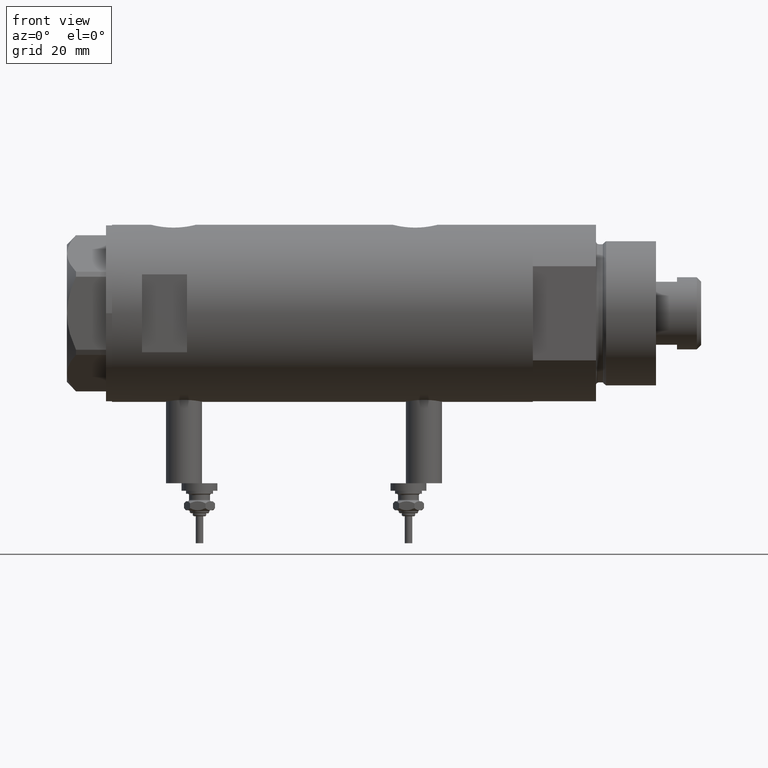
[diagram: clean part render]
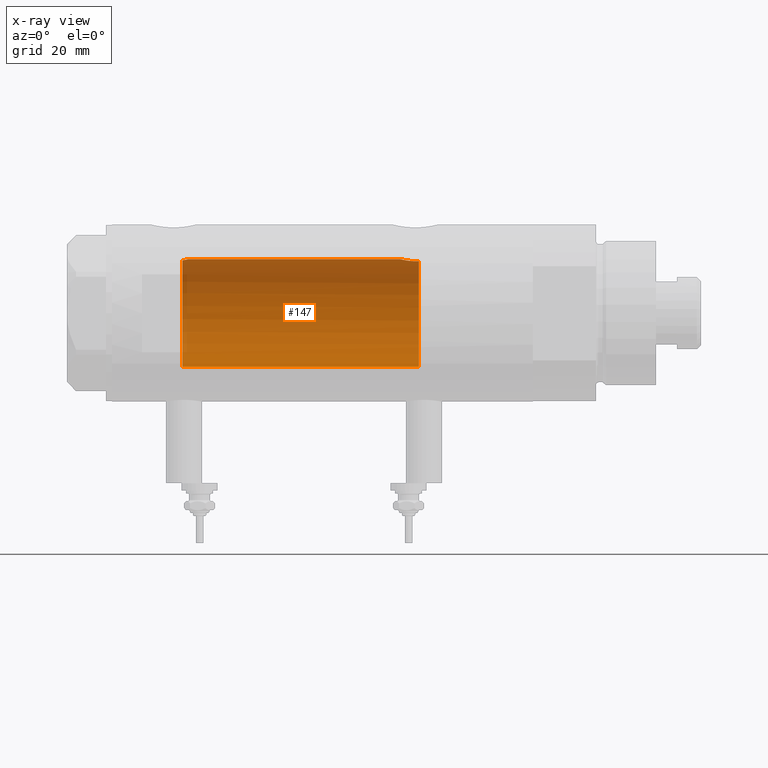
[diagram: x-ray — body ghosted, one internal face saturated and labeled with its STEP entity id]
A machine part, front view, then the same camera in x-ray: the body is ghosted and one INTERNAL B-rep face — a face not visible from any outside direction — is saturated and labeled: STEP entity #147.
In plain terms, the highlighted cylindrical surface (partial cylindrical patch) has radius 18 mm, axis along (1, 0, -0).
Its self-contained STEP definition (entity closure, byte-faithful):
#4 = DIRECTION ( 'NONE',  ( -0.000000000000000000, -0.000000000000000000, -1.000000000000000000 ) ) ;
#147 = ADVANCED_FACE ( 'NONE', ( #5894 ), #2730, .F. ) ;
#342 = CARTESIAN_POINT ( 'NONE',  ( 0.000000000000000000, 0.000000000000000000, -32.09999999999998721 ) ) ;
#401 = CARTESIAN_POINT ( 'NONE',  ( 17.35631194664785681, 4.771042759406570077, -29.89667763205954287 ) ) ;
#428 = CARTESIAN_POINT ( 'NONE',  ( 17.61032289555864239, 3.726910670425180427, -27.76756985850230564 ) ) ;
#433 = EDGE_CURVE ( 'NONE', #1132, #953, #3854, .T. ) ;
#457 = CARTESIAN_POINT ( 'NONE',  ( 17.91007218376326193, 1.805463612197654166, 45.07866376881659676 ) ) ;
#511 = CARTESIAN_POINT ( 'NONE',  ( 18.00000000000000000, 2.204364238465235033E-15, 70.09999999999999432 ) ) ;
#517 = VERTEX_POINT ( 'NONE', #2620 ) ;
#522 = CARTESIAN_POINT ( 'NONE',  ( 17.58783030962034388, 3.829911878881825160, 46.59999999999998721 ) ) ;
#546 = CARTESIAN_POINT ( 'NONE',  ( 17.95540531162507136, 1.279032093992328756, 44.90250861430337892 ) ) ;
#767 = DIRECTION ( 'NONE',  ( -1.000000000000000000, 0.000000000000000000, 0.000000000000000000 ) ) ;
#846 = CARTESIAN_POINT ( 'NONE',  ( 17.63589737371339083, 3.604488512479873119, -27.62742655266249514 ) ) ;
#854 = CARTESIAN_POINT ( 'NONE',  ( 17.37157951943346745, 4.714681855650494136, -32.09999999999999432 ) ) ;
#879 = CARTESIAN_POINT ( 'NONE',  ( 17.68656644271517209, 3.347025706529860312, -27.36453774950910045 ) ) ;
#953 = VERTEX_POINT ( 'NONE', #854 ) ;
#1068 = CARTESIAN_POINT ( 'NONE',  ( -18.00000000000000000, 0.000000000000000000, 70.09999999999999432 ) ) ;
#1113 = VERTEX_POINT ( 'NONE', #5536 ) ;
#1132 = VERTEX_POINT ( 'NONE', #3290 ) ;
#1138 = VECTOR ( 'NONE', #4, 1000.000000000000000 ) ;
#1213 = DIRECTION ( 'NONE',  ( -1.000000000000000000, 0.000000000000000000, 0.000000000000000000 ) ) ;
#1297 = CARTESIAN_POINT ( 'NONE',  ( 17.71174132276681590, 3.211689381115077513, -27.24121359250870000 ) ) ;
#1318 = EDGE_CURVE ( 'NONE', #2915, #5884, #2224, .T. ) ;
#1323 = CARTESIAN_POINT ( 'NONE',  ( 18.00000000000000000, 0.000000000000000000, 44.73499999999999233 ) ) ;
#1329 = CARTESIAN_POINT ( 'NONE',  ( 17.97733715731490989, 0.9209699998971184742, -26.11935966604423243 ) ) ;
#1426 = EDGE_CURVE ( 'NONE', #517, #1113, #1573, .T. ) ;
#1457 = CARTESIAN_POINT ( 'NONE',  ( 17.83158514913445103, 2.461498934476296085, 45.39965995681277633 ) ) ;
#1494 = CARTESIAN_POINT ( 'NONE',  ( 18.00000000000000000, 0.000000000000000000, 44.73499999999999233 ) ) ;
#1530 = VECTOR ( 'NONE', #4759, 1000.000000000000000 ) ;
#1573 = LINE ( 'NONE', #1068, #1530 ) ;
#1594 = CARTESIAN_POINT ( 'NONE',  ( 0.000000000000000000, 0.000000000000000000, 46.59999999999999432 ) ) ;
#1728 = EDGE_CURVE ( 'NONE', #5884, #1132, #5551, .T. ) ;
#1756 = CARTESIAN_POINT ( 'NONE',  ( 17.38237957915197285, 4.675094569549008483, -29.54138980228257338 ) ) ;
#1768 = DIRECTION ( 'NONE',  ( -0.000000000000000000, -0.000000000000000000, -1.000000000000000000 ) ) ;
#1786 = CARTESIAN_POINT ( 'NONE',  ( 17.99716691696285409, 0.3685254503903831469, -26.04545042928659981 ) ) ;
#1817 = CARTESIAN_POINT ( 'NONE',  ( 17.41328271218089796, 4.558641711475907243, -29.19087254718660418 ) ) ;
#1914 = ORIENTED_EDGE ( 'NONE', *, *, #3327, .T. ) ;
#1941 = DIRECTION ( 'NONE',  ( 1.000000000000000000, 0.000000000000000000, 0.000000000000000000 ) ) ;
#2027 = EDGE_CURVE ( 'NONE', #2915, #517, #3735, .T. ) ;
#2066 = CARTESIAN_POINT ( 'NONE',  ( 17.33262691996380767, 4.855935766715060886, -31.37488940890202116 ) ) ;
#2210 = AXIS2_PLACEMENT_3D ( 'NONE', #1594, #3410, #1941 ) ;
#2224 = B_SPLINE_CURVE_WITH_KNOTS ( 'NONE', 3,
 ( #522, #3632, #2813, #5021, #4994, #1457, #2300, #4164, #457, #3249, #546, #2744, #4105, #1323 ),
 .UNSPECIFIED., .F., .F.,
 ( 4, 2, 2, 2, 2, 2, 4 ),
 ( 0.02614985543880328500, 0.02725214354003946404, 0.02780328759065755356, 0.02835443164127564308, 0.02890557569189372913, 0.02945671974251181865, 0.03055900784374799770 ),
 .UNSPECIFIED. ) ;
#2245 = CARTESIAN_POINT ( 'NONE',  ( 17.34085862114803689, 4.826483754267692383, -30.26145238513612057 ) ) ;
#2270 = CARTESIAN_POINT ( 'NONE',  ( 17.49030773641652914, 4.256160900234553957, -28.51469509681785652 ) ) ;
#2286 = ORIENTED_EDGE ( 'NONE', *, *, #1318, .F. ) ;
#2300 = CARTESIAN_POINT ( 'NONE',  ( 17.85293122918850273, 2.302201220737755794, 45.31031080804816469 ) ) ;
#2608 = DIRECTION ( 'NONE',  ( 0.000000000000000000, 0.000000000000000000, -1.000000000000000000 ) ) ;
#2620 = CARTESIAN_POINT ( 'NONE',  ( -18.00000000000000000, 0.000000000000000000, 46.59999999999999432 ) ) ;
#2721 = CARTESIAN_POINT ( 'NONE',  ( 17.98587882862718601, 0.7362002489460850452, -26.08746722239206406 ) ) ;
#2730 = CYLINDRICAL_SURFACE ( 'NONE', #4486, 18.00000000000000000 ) ;
#2744 = CARTESIAN_POINT ( 'NONE',  ( 17.98843015915091570, 0.7391836159806497442, 44.77731130524778536 ) ) ;
#2813 = CARTESIAN_POINT ( 'NONE',  ( 17.68814035493779357, 3.348626323852638365, 46.05183600219630335 ) ) ;
#2915 = VERTEX_POINT ( 'NONE', #5629 ) ;
#3104 = CARTESIAN_POINT ( 'NONE',  ( 0.000000000000000000, 0.000000000000000000, 70.09999999999999432 ) ) ;
#3123 = CARTESIAN_POINT ( 'NONE',  ( 17.99999999999999645, 0.1844036484100888829, -26.03499999999998238 ) ) ;
#3161 = CARTESIAN_POINT ( 'NONE',  ( 17.94405978035183935, 1.463580074031385569, -26.24553017623723861 ) ) ;
#3249 = CARTESIAN_POINT ( 'NONE',  ( 17.94167814235965608, 1.458276351914867375, 44.95504464479716233 ) ) ;
#3290 = CARTESIAN_POINT ( 'NONE',  ( 18.00000000000000000, 5.958021437579254357E-16, -26.03499999999998948 ) ) ;
#3327 = EDGE_CURVE ( 'NONE', #1113, #953, #4510, .T. ) ;
#3410 = DIRECTION ( 'NONE',  ( 0.000000000000000000, 0.000000000000000000, 1.000000000000000000 ) ) ;
#3574 = CARTESIAN_POINT ( 'NONE',  ( 17.53642083926971651, 4.065376572064631766, -28.20260027543615777 ) ) ;
#3601 = CARTESIAN_POINT ( 'NONE',  ( 17.76085061188610581, 2.927954048074872251, -27.01043039029092441 ) ) ;
#3632 = CARTESIAN_POINT ( 'NONE',  ( 17.63704841537101231, 3.603891093161669890, 46.31145343596539732 ) ) ;
#3680 = ORIENTED_EDGE ( 'NONE', *, *, #433, .F. ) ;
#3735 = CIRCLE ( 'NONE', #2210, 18.00000000000000000 ) ;
#3854 = B_SPLINE_CURVE_WITH_KNOTS ( 'NONE', 3,
 ( #5915, #3123, #1786, #2721, #1329, #3161, #4511, #5432, #4966, #4999, #3601, #1297, #879, #846, #428, #3574, #2270, #4077, #1817, #1756, #401, #2245, #5406, #5232, #2066, #5734, #3901 ),
 .UNSPECIFIED., .F., .F.,
 ( 4, 2, 2, 2, 2, 2, 2, 2, 2, 2, 1, 2, 2, 4 ),
 ( 0.01528157848519460724, 0.01583467956029641077, 0.01638778063539821778, 0.01749398278560182138, 0.01804708386070362491, 0.01860018493580542845, 0.01915328601090723198, 0.01970638708600903552, 0.02081258923621265300, 0.02136569031131445653, 0.02191879138641626354, 0.02247189246151807054, 0.02302499353661987755, 0.02413119568682350197 ),
 .UNSPECIFIED. ) ;
#3901 = CARTESIAN_POINT ( 'NONE',  ( 17.37157951943346745, 4.714681855650494136, -32.09999999999999432 ) ) ;
#3981 = ORIENTED_EDGE ( 'NONE', *, *, #1426, .T. ) ;
#4077 = CARTESIAN_POINT ( 'NONE',  ( 17.43128843254318028, 4.489613141718952427, -29.01700003713170162 ) ) ;
#4105 = CARTESIAN_POINT ( 'NONE',  ( 18.00000000000001066, 0.3728474842072352358, 44.73499999999999233 ) ) ;
#4164 = CARTESIAN_POINT ( 'NONE',  ( 17.89217382667230538, 1.974183297225218015, 45.14981302266163965 ) ) ;
#4486 = AXIS2_PLACEMENT_3D ( 'NONE', #3104, #1768, #767 ) ;
#4510 = CIRCLE ( 'NONE', #5662, 18.00000000000000000 ) ;
#4511 = CARTESIAN_POINT ( 'NONE',  ( 17.91189082287941403, 1.809824880389074186, -26.36912370284670004 ) ) ;
#4643 = EDGE_LOOP ( 'NONE', ( #5288, #2286, #5901, #3981, #1914, #3680 ) ) ;
#4759 = DIRECTION ( 'NONE',  ( -0.000000000000000000, -0.000000000000000000, -1.000000000000000000 ) ) ;
#4966 = CARTESIAN_POINT ( 'NONE',  ( 17.83051055968251219, 2.469307448774137104, -26.70420614498791778 ) ) ;
#4994 = CARTESIAN_POINT ( 'NONE',  ( 17.78617492856930227, 2.770629413254892537, 45.59682049650071178 ) ) ;
#4999 = CARTESIAN_POINT ( 'NONE',  ( 17.78478726694684298, 2.779555353823086161, -26.90297143050465323 ) ) ;
#5021 = CARTESIAN_POINT ( 'NONE',  ( 17.76196254920472128, 2.921230608637938264, 45.70535341986154521 ) ) ;
#5232 = CARTESIAN_POINT ( 'NONE',  ( 17.32928165965088141, 4.867855194001449171, -30.81899018256649114 ) ) ;
#5288 = ORIENTED_EDGE ( 'NONE', *, *, #1728, .F. ) ;
#5406 = CARTESIAN_POINT ( 'NONE',  ( 17.33118376015917761, 4.861110225087390546, -30.63112109378173642 ) ) ;
#5432 = CARTESIAN_POINT ( 'NONE',  ( 17.85236636886077832, 2.306694554785103435, -26.61264586133006560 ) ) ;
#5536 = CARTESIAN_POINT ( 'NONE',  ( -18.00000000000000000, 0.000000000000000000, -32.09999999999998721 ) ) ;
#5551 = LINE ( 'NONE', #511, #1138 ) ;
#5629 = CARTESIAN_POINT ( 'NONE',  ( 17.58783030962034388, 3.829911878881825160, 46.59999999999998721 ) ) ;
#5662 = AXIS2_PLACEMENT_3D ( 'NONE', #342, #2608, #1213 ) ;
#5734 = CARTESIAN_POINT ( 'NONE',  ( 17.34671983132639284, 4.806279138776324622, -31.74012329268312271 ) ) ;
#5884 = VERTEX_POINT ( 'NONE', #1494 ) ;
#5894 = FACE_OUTER_BOUND ( 'NONE', #4643, .T. ) ;
#5901 = ORIENTED_EDGE ( 'NONE', *, *, #2027, .T. ) ;
#5915 = CARTESIAN_POINT ( 'NONE',  ( 18.00000000000000000, 5.958021437579254357E-16, -26.03499999999998948 ) ) ;